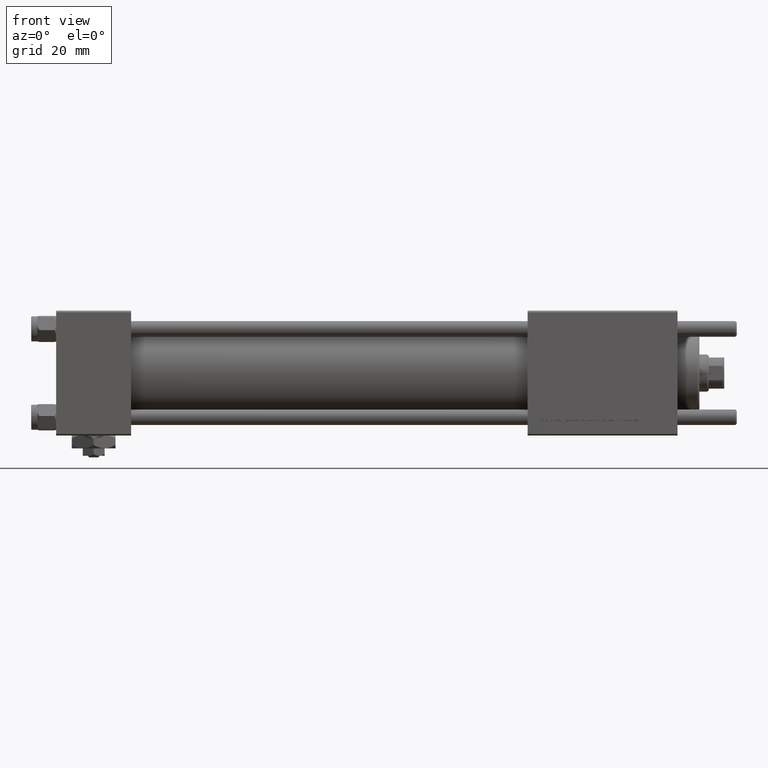
[diagram: clean part render]
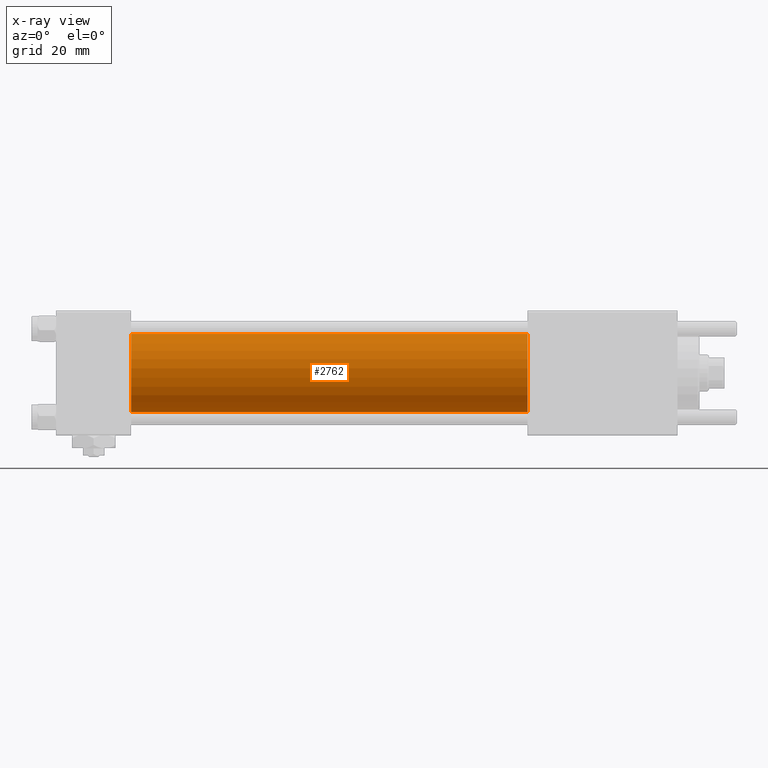
[diagram: x-ray — body ghosted, one internal face saturated and labeled with its STEP entity id]
A machine part, front view, then the same camera in x-ray: the body is ghosted and one INTERNAL B-rep face — a face not visible from any outside direction — is saturated and labeled: STEP entity #2762.
In plain terms, the highlighted cylindrical surface (partial cylindrical patch) has radius 12.5 mm, axis along (-1, -0, -0).
Its self-contained STEP definition (entity closure, byte-faithful):
#1055 = VERTEX_POINT ( 'NONE', #56355 ) ;
#2762 = ADVANCED_FACE ( 'NONE', ( #42204 ), #42797, .F. ) ;
#6128 = AXIS2_PLACEMENT_3D ( 'NONE', #51369, #6994, #47521 ) ;
#6643 = LINE ( 'NONE', #11655, #49583 ) ;
#6994 = DIRECTION ( 'NONE',  ( -1.000000000000000000, -0.000000000000000000, -0.000000000000000000 ) ) ;
#7994 = AXIS2_PLACEMENT_3D ( 'NONE', #50254, #14183, #13585 ) ;
#9118 = EDGE_CURVE ( 'NONE', #28845, #36676, #23342, .T. ) ;
#11655 = CARTESIAN_POINT ( 'NONE',  ( 151.0000000000000000, -1.071276715031019515E-15, -12.49999999999999645 ) ) ;
#13585 = DIRECTION ( 'NONE',  ( 0.000000000000000000, 0.000000000000000000, -1.000000000000000000 ) ) ;
#14183 = DIRECTION ( 'NONE',  ( 1.000000000000000000, 0.000000000000000000, 0.000000000000000000 ) ) ;
#20423 = CARTESIAN_POINT ( 'NONE',  ( 151.0000000000000000, -1.071276715031019515E-15, -12.49999999999999645 ) ) ;
#21921 = DIRECTION ( 'NONE',  ( 0.000000000000000000, 0.000000000000000000, -1.000000000000000000 ) ) ;
#23342 = CIRCLE ( 'NONE', #26144, 12.49999999999999645 ) ;
#26144 = AXIS2_PLACEMENT_3D ( 'NONE', #30480, #48254, #21921 ) ;
#28845 = VERTEX_POINT ( 'NONE', #45959 ) ;
#30035 = ORIENTED_EDGE ( 'NONE', *, *, #53258, .F. ) ;
#30053 = EDGE_LOOP ( 'NONE', ( #43545, #43540, #47429, #30035 ) ) ;
#30480 = CARTESIAN_POINT ( 'NONE',  ( 151.0000000000000000, -2.602085213965210642E-15, 0.000000000000000000 ) ) ;
#30546 = EDGE_CURVE ( 'NONE', #34193, #1055, #47700, .T. ) ;
#31629 = EDGE_CURVE ( 'NONE', #36676, #1055, #6643, .T. ) ;
#33537 = DIRECTION ( 'NONE',  ( -1.000000000000000000, -0.000000000000000000, -0.000000000000000000 ) ) ;
#34193 = VERTEX_POINT ( 'NONE', #54996 ) ;
#35965 = DIRECTION ( 'NONE',  ( -1.000000000000000000, -0.000000000000000000, -0.000000000000000000 ) ) ;
#36676 = VERTEX_POINT ( 'NONE', #20423 ) ;
#40117 = LINE ( 'NONE', #48410, #44457 ) ;
#42204 = FACE_OUTER_BOUND ( 'NONE', #30053, .T. ) ;
#42797 = CYLINDRICAL_SURFACE ( 'NONE', #6128, 12.49999999999999645 ) ;
#43540 = ORIENTED_EDGE ( 'NONE', *, *, #31629, .T. ) ;
#43545 = ORIENTED_EDGE ( 'NONE', *, *, #9118, .T. ) ;
#44457 = VECTOR ( 'NONE', #35965, 1000.000000000000000 ) ;
#45959 = CARTESIAN_POINT ( 'NONE',  ( 151.0000000000000000, -2.602085213965210642E-15, 12.49999999999999645 ) ) ;
#47429 = ORIENTED_EDGE ( 'NONE', *, *, #30546, .F. ) ;
#47521 = DIRECTION ( 'NONE',  ( 0.000000000000000000, 0.000000000000000000, 1.000000000000000000 ) ) ;
#47700 = CIRCLE ( 'NONE', #7994, 12.49999999999999645 ) ;
#48254 = DIRECTION ( 'NONE',  ( 1.000000000000000000, 0.000000000000000000, 0.000000000000000000 ) ) ;
#48410 = CARTESIAN_POINT ( 'NONE',  ( 151.0000000000000000, -2.602085213965210642E-15, 12.49999999999999645 ) ) ;
#49583 = VECTOR ( 'NONE', #33537, 1000.000000000000000 ) ;
#50254 = CARTESIAN_POINT ( 'NONE',  ( 24.00000000000000000, -2.602085213965210642E-15, 0.000000000000000000 ) ) ;
#51369 = CARTESIAN_POINT ( 'NONE',  ( 151.0000000000000000, -2.602085213965210642E-15, 0.000000000000000000 ) ) ;
#53258 = EDGE_CURVE ( 'NONE', #28845, #34193, #40117, .T. ) ;
#54996 = CARTESIAN_POINT ( 'NONE',  ( 24.00000000000000000, -2.602085213965210642E-15, 12.49999999999999645 ) ) ;
#56355 = CARTESIAN_POINT ( 'NONE',  ( 24.00000000000000000, -1.071276715031019515E-15, -12.49999999999999645 ) ) ;